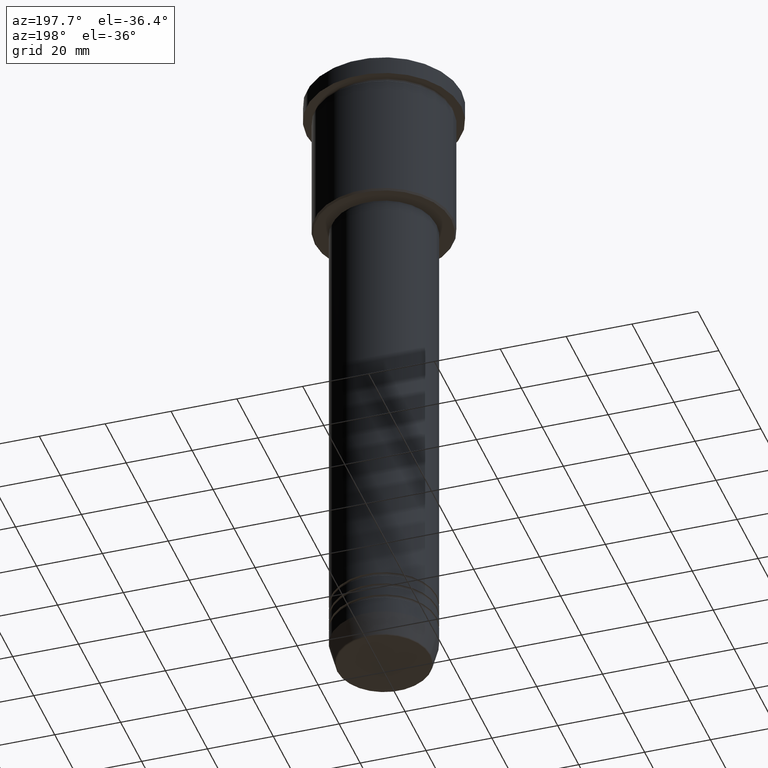
[diagram: clean part render]
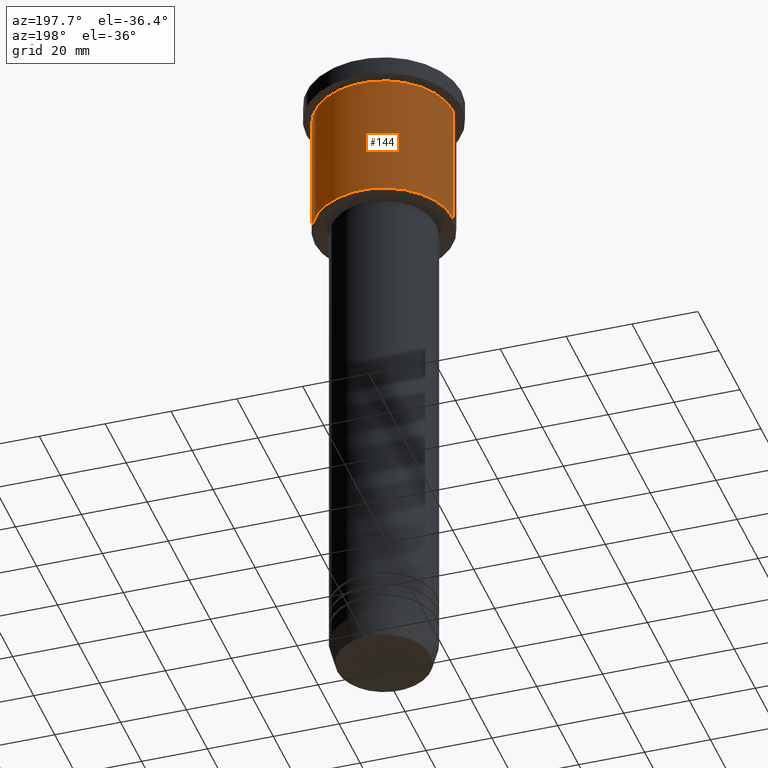
[diagram: same view with one face highlighted and labeled with its STEP entity id]
A machine part, auxiliary view. The second image highlights one B-rep face of the part: STEP entity #144.
In plain terms, the highlighted cylindrical surface (partial cylindrical patch) has radius 21 mm, axis along (-0, -0, 1).
Its self-contained STEP definition (entity closure, byte-faithful):
#104 = EDGE_CURVE ( 'NONE', #389, #699, #426, .T. ) ;
#105 = VERTEX_POINT ( 'NONE', #531 ) ;
#144 = ADVANCED_FACE ( 'NONE', ( #996 ), #183, .T. ) ;
#162 = LINE ( 'NONE', #889, #429 ) ;
#183 = CYLINDRICAL_SURFACE ( 'NONE', #882, 21.00000000000000000 ) ;
#199 = VECTOR ( 'NONE', #356, 1000.000000000000000 ) ;
#201 = CARTESIAN_POINT ( 'NONE',  ( 0.000000000000000000, 0.000000000000000000, -45.50000000000002132 ) ) ;
#214 = CARTESIAN_POINT ( 'NONE',  ( -21.00000000000000000, 2.571758278209441661E-15, -6.999999999999993783 ) ) ;
#302 = EDGE_CURVE ( 'NONE', #105, #1024, #676, .T. ) ;
#356 = DIRECTION ( 'NONE',  ( -0.000000000000000000, -0.000000000000000000, 1.000000000000000000 ) ) ;
#389 = VERTEX_POINT ( 'NONE', #488 ) ;
#418 = DIRECTION ( 'NONE',  ( -0.000000000000000000, -0.000000000000000000, 1.000000000000000000 ) ) ;
#426 = CIRCLE ( 'NONE', #635, 21.00000000000000000 ) ;
#429 = VECTOR ( 'NONE', #418, 1000.000000000000000 ) ;
#444 = CARTESIAN_POINT ( 'NONE',  ( 0.000000000000000000, 0.000000000000000000, 0.000000000000000000 ) ) ;
#464 = EDGE_LOOP ( 'NONE', ( #515, #500, #895, #817 ) ) ;
#488 = CARTESIAN_POINT ( 'NONE',  ( 21.00000000000000000, 0.000000000000000000, -6.999999999999993783 ) ) ;
#500 = ORIENTED_EDGE ( 'NONE', *, *, #821, .T. ) ;
#515 = ORIENTED_EDGE ( 'NONE', *, *, #302, .T. ) ;
#531 = CARTESIAN_POINT ( 'NONE',  ( 21.00000000000000000, 0.000000000000000000, -45.50000000000002132 ) ) ;
#560 = DIRECTION ( 'NONE',  ( -0.000000000000000000, -0.000000000000000000, 1.000000000000000000 ) ) ;
#623 = CARTESIAN_POINT ( 'NONE',  ( 21.00000000000000000, 0.000000000000000000, 0.000000000000000000 ) ) ;
#627 = DIRECTION ( 'NONE',  ( -0.000000000000000000, -0.000000000000000000, 1.000000000000000000 ) ) ;
#631 = DIRECTION ( 'NONE',  ( 1.000000000000000000, 0.000000000000000000, 0.000000000000000000 ) ) ;
#635 = AXIS2_PLACEMENT_3D ( 'NONE', #1003, #627, #713 ) ;
#676 = CIRCLE ( 'NONE', #815, 21.00000000000000000 ) ;
#699 = VERTEX_POINT ( 'NONE', #214 ) ;
#713 = DIRECTION ( 'NONE',  ( 1.000000000000000000, 0.000000000000000000, 0.000000000000000000 ) ) ;
#716 = DIRECTION ( 'NONE',  ( -0.000000000000000000, -0.000000000000000000, 1.000000000000000000 ) ) ;
#730 = CARTESIAN_POINT ( 'NONE',  ( -21.00000000000000000, 2.571758278209441661E-15, -45.50000000000002132 ) ) ;
#815 = AXIS2_PLACEMENT_3D ( 'NONE', #201, #560, #924 ) ;
#817 = ORIENTED_EDGE ( 'NONE', *, *, #991, .F. ) ;
#821 = EDGE_CURVE ( 'NONE', #1024, #699, #162, .T. ) ;
#882 = AXIS2_PLACEMENT_3D ( 'NONE', #444, #716, #631 ) ;
#889 = CARTESIAN_POINT ( 'NONE',  ( -21.00000000000000000, 2.571758278209441661E-15, 0.000000000000000000 ) ) ;
#895 = ORIENTED_EDGE ( 'NONE', *, *, #104, .F. ) ;
#924 = DIRECTION ( 'NONE',  ( -1.000000000000000000, 0.000000000000000000, 0.000000000000000000 ) ) ;
#991 = EDGE_CURVE ( 'NONE', #105, #389, #1067, .T. ) ;
#996 = FACE_OUTER_BOUND ( 'NONE', #464, .T. ) ;
#1003 = CARTESIAN_POINT ( 'NONE',  ( 0.000000000000000000, 0.000000000000000000, -6.999999999999993783 ) ) ;
#1024 = VERTEX_POINT ( 'NONE', #730 ) ;
#1067 = LINE ( 'NONE', #623, #199 ) ;